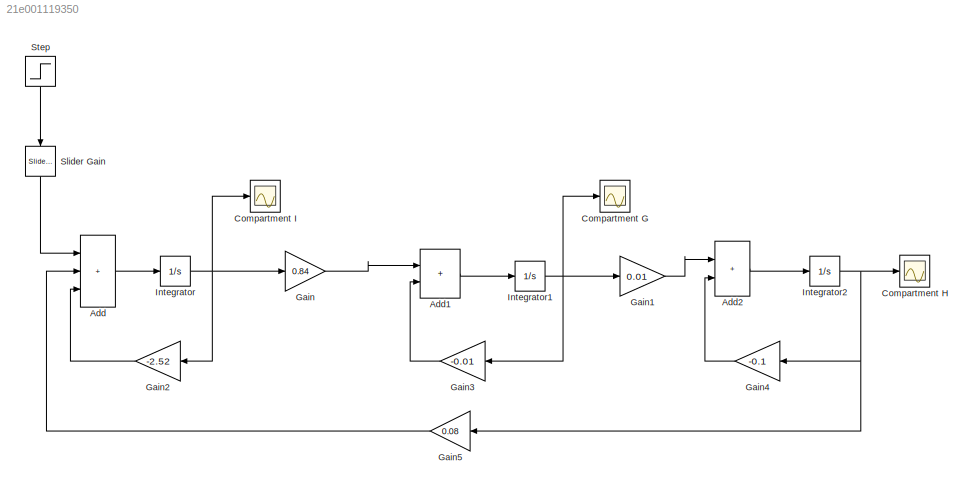
MODEL slx_21e001119350
KIND model
CONFIG AbsTol = auto
CONFIG EnableMultiTasking = off
CONFIG FixedStep = auto
CONFIG MaxStep = auto
CONFIG MinStep = auto
CONFIG RelTol = 1e-3
CONFIG SampleTimeConstraint = Unconstrained
CONFIG SolverName = VariableStepAuto
CONFIG StartTime = 0.0
CONFIG StopTime = 300
BLOCK [Sum] Add
  IconShape = rectangular
  Inputs = +++
BLOCK [Sum] Add1
  IconShape = rectangular
BLOCK [Sum] Add2
  IconShape = rectangular
BLOCK [Scope] Compartment G
  Floating = off
  NumInputPorts = 1
  ScopeSpecificationString = Simulink.scopes.TimeScopeBlockCfg('CurrentConfiguration', extmgr.ConfigurationSet(extmgr.Configuration('Core','General UI',true),extmgr.Configuration('Core','Source UI',true),extmgr.Configuration('Sources','WiredSimulink',true,'DataLoggingVariableName','ScopeData1'),extmgr.Configuration('Visuals','Time Domain',true,'SerializedDisplays',{struct('MinYLimReal','732.26499','MaxYLimReal','7497.52611','...<+1417ch>
BLOCK [Scope] Compartment H
  Floating = off
  NumInputPorts = 1
  ScopeSpecificationString = Simulink.scopes.TimeScopeBlockCfg('CurrentConfiguration', extmgr.ConfigurationSet(extmgr.Configuration('Core','General UI',true),extmgr.Configuration('Core','Source UI',true),extmgr.Configuration('Sources','WiredSimulink',true,'DataLoggingVariableName','ScopeData2'),extmgr.Configuration('Visuals','Time Domain',true,'SerializedDisplays',{struct('MinYLimReal','79.51111','MaxYLimReal','748.9442','YLa...<+1405ch>
BLOCK [Scope] Compartment I
  Floating = off
  NumInputPorts = 1
  ScopeSpecificationString = Simulink.scopes.TimeScopeBlockCfg('CurrentConfiguration', extmgr.ConfigurationSet(extmgr.Configuration('Core','General UI',true),extmgr.Configuration('Core','Source UI',true),extmgr.Configuration('Sources','WiredSimulink',true),extmgr.Configuration('Visuals','Time Domain',true,'SerializedDisplays',{struct('MinYLimReal','1.80546','MaxYLimReal','90.02162','YLabelReal','','MinYLimMag','1.80546','MaxY...<+1361ch>
BLOCK [Gain] Gain
  Gain = 0.84
BLOCK [Gain] Gain1
  Gain = 0.01
BLOCK [Gain] Gain2
  Gain = -2.52
  NameLocation = top
BLOCK [Gain] Gain3
  Gain = -0.01
  NameLocation = top
BLOCK [Gain] Gain4
  Gain = -0.1
  NameLocation = top
BLOCK [Gain] Gain5
  Gain = 0.08
  NameLocation = top
BLOCK [Integrator] Integrator
  InitialCondition = 81.2
BLOCK [Integrator] Integrator1
  InitialCondition = 6821
BLOCK [Integrator] Integrator2
  InitialCondition = 682
BLOCK [Reference] Slider Gain  REF=simulink/Math
Operations/Slider
Gain
  NameLocation = left
  SourceBlock = simulink/Math\nOperations/Slider\nGain
  SourceType = Slider Gain
BLOCK [Step] Step
  NameLocation = left
  SampleTime = 0
  Time = 0
LINE Add1:1 -> Integrator1:1
LINE Add2:1 -> Integrator2:1
LINE Add:1 -> Integrator:1
LINE Gain1:1 -> Add2:1
LINE Gain2:1 -> Add:3
LINE Gain3:1 -> Add1:2
LINE Gain4:1 -> Add2:2
LINE Gain5:1 -> Add:2
LINE Gain:1 -> Add1:1
NET Integrator1:1 -> Compartment G:1, Gain1:1, Gain3:1
NET Integrator2:1 -> Compartment H:1, Gain4:1, Gain5:1
NET Integrator:1 -> Compartment I:1, Gain2:1, Gain:1
LINE Slider Gain:1 -> Add:1
LINE Step:1 -> Slider Gain:1
note: NET lines group one-source signal fan-out (src -> all destinations, sorted); 1:1 wires keep LINE
